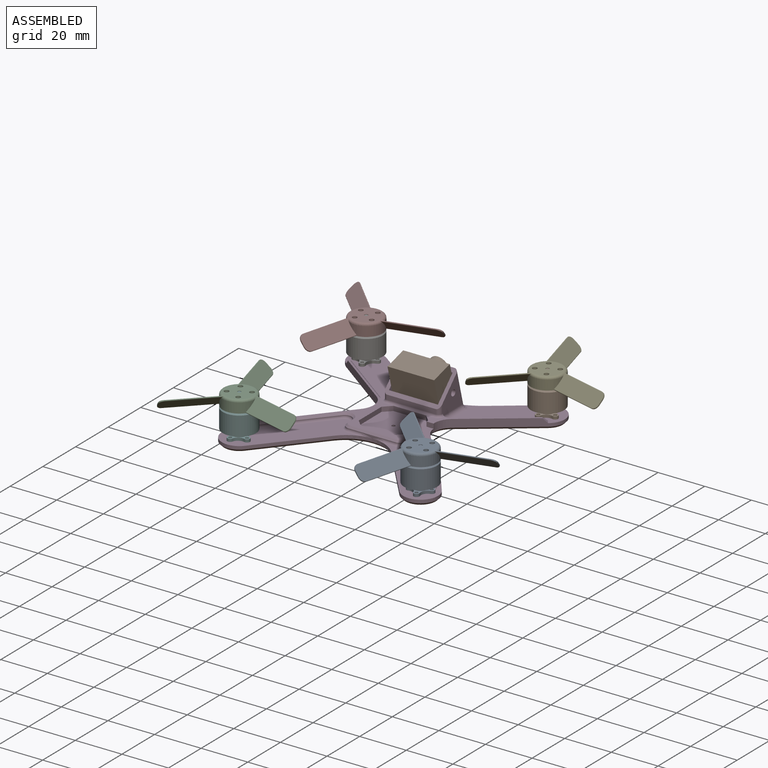
[diagram: assembled view]
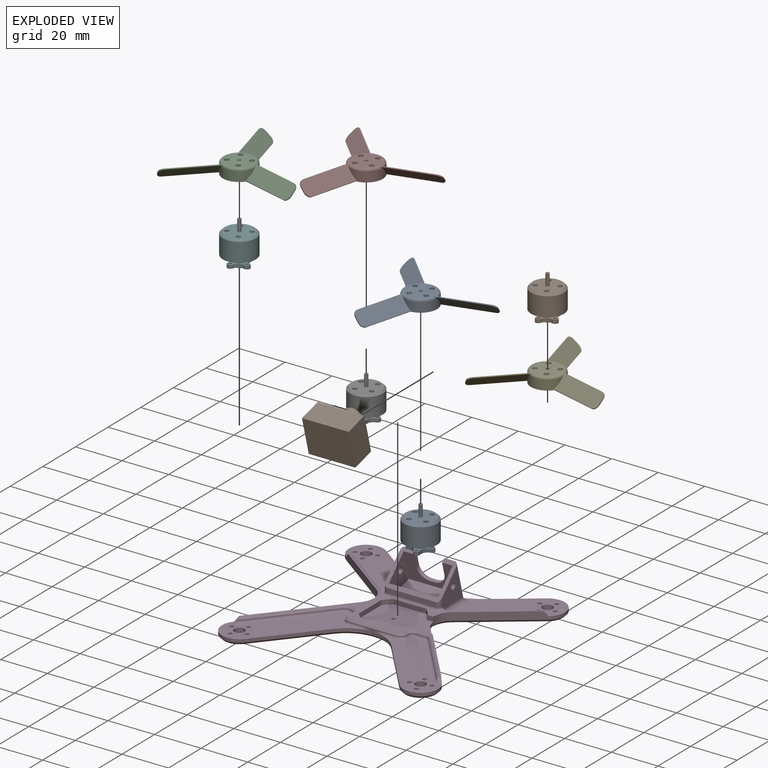
[diagram: exploded view]
GUIDED TOUR — MATED ASSEMBLY (Onshape document 897010bb83bc27f06547f538, AutoMate assembly 897010bb83bc27f06547f538_bd5ba9d6e9a11d0b9ae780dc_fcbd0d82ef825e750d51f35d_default)

This assembly has 10 components, labeled P0..P9 below (a component is one placed occurrence of a part; the same part can appear more than once), held together by 20 mates. A mate is a constraint between two components; its type names the relative motion it leaves free:
  CYLINDRICAL — leaves both rotation about and translation along the listed axis free,
  PLANAR — leaves sliding in the plane through the listed point (normal = the listed direction) and rotation about that normal free.
Axis/direction vectors are unit vectors and 'through' points are millimeter coordinates, both in the assembly's world frame.

MATES
  1. PLANAR "Planar 8": P2 <-> P5, direction (0.000, 0.000, -1.000) through (-38.89, -41.06, 14.83) mm
  2. CYLINDRICAL "Cylindrical 7": P5 <-> P3, axis (0.000, 0.000, -1.000) through (-39.98, -45.11, 2.08) mm
  3. PLANAR "Planar 6": P4 <-> P1, direction (0.000, 0.000, -1.000) through (38.89, 36.73, 14.83) mm
  4. CYLINDRICAL "Cylindrical 1": P6 <-> P3, axis (0.000, 0.000, -1.000) through (-38.89, 36.73, 2.08) mm
  5. PLANAR "Planar 11": P9 <-> P3, direction (1.000, 0.000, 0.000) through (10.00, 15.37, 12.16) mm
  6. PLANAR "Planar 7": P6 <-> P7, direction (0.000, 0.000, 1.000) through (-38.89, 36.73, 14.83) mm
  7. CYLINDRICAL "Cylindrical 4": P1 <-> P3, axis (0.000, 0.000, -1.000) through (38.89, 36.73, 1.78) mm
  8. CYLINDRICAL "Cylindrical 16": P2 <-> P5, axis (0.000, 0.000, 1.000) through (-38.89, -41.06, 20.03) mm
  9. CYLINDRICAL "Cylindrical 9": P8 <-> P0, axis (0.000, 0.000, 1.000) through (38.89, -41.06, 20.03) mm
  10. CYLINDRICAL "Cylindrical 2": P6 <-> P3, axis (0.000, 0.000, -1.000) through (-42.95, 35.64, 2.08) mm
  11. CYLINDRICAL "Cylindrical 5": P0 <-> P3, axis (0.000, 0.000, -1.000) through (42.95, -39.97, 2.08) mm
  12. CYLINDRICAL "Cylindrical 10": P8 <-> P0, axis (0.000, 0.000, 1.000) through (41.14, -37.16, 20.03) mm
  13. CYLINDRICAL "Cylindrical 14": P7 <-> P6, axis (0.000, 0.000, -1.000) through (-42.79, 38.98, 14.83) mm
  14. CYLINDRICAL "Cylindrical 6": P0 <-> P3, axis (0.000, 0.000, -1.000) through (38.89, -41.06, 2.08) mm
  15. PLANAR "Planar 9": P9 <-> P3, direction (0.000, 0.966, 0.259) through (0.00, 20.20, 13.46) mm
  16. PLANAR "Planar 5": P8 <-> P0, direction (0.000, 0.000, -1.000) through (38.89, -41.06, 14.83) mm
  17. CYLINDRICAL "Cylindrical 13": P7 <-> P6, axis (0.000, 0.000, -1.000) through (-38.89, 36.73, 14.83) mm
  18. CYLINDRICAL "Cylindrical 11": P4 <-> P1, axis (0.000, 0.000, 1.000) through (38.89, 36.73, 20.03) mm
  19. CYLINDRICAL "Cylindrical 3": P1 <-> P3, axis (0.000, 0.000, -1.000) through (37.80, 32.67, 2.08) mm
  20. PLANAR "Planar 10": P9 <-> P3, direction (0.000, 0.259, -0.966) through (0.00, 17.45, 4.43) mm

ASSEMBLY ORDER
  1. P4 — the base component [order verified]
  2. P1 [order verified]
  3. P2 [order verified]
  4. P5 [order verified]
  5. P7 [order verified]
  6. P6 [order verified]
  7. P8 [order verified]
  8. P0 [order verified]
  9. P3 [order verified]
  10. P9 [order verified]
(P3 verified with a relaxed clearance tolerance: the source model stores slight part interference there.)
Order-tag legend:
  [order verified] — this step's position reverses a verified removal order: the component was checked to insert without passing through the ones already placed.

Of the 10 components, 5 carry the full construction recipe — the FeatureScript program that regenerates the part's solid from scratch; the rest are supplied as boundary geometry only.
Each toured component is shown spotlighted twice — in the assembled view, then in the exploded view, where a leader line traces a displaced component back to its assembled socket (saturated green if recipe-attached, orange if geometry-only; every other component desaturated gray) — followed by its recipe or geometry summary and the mates that hold it.
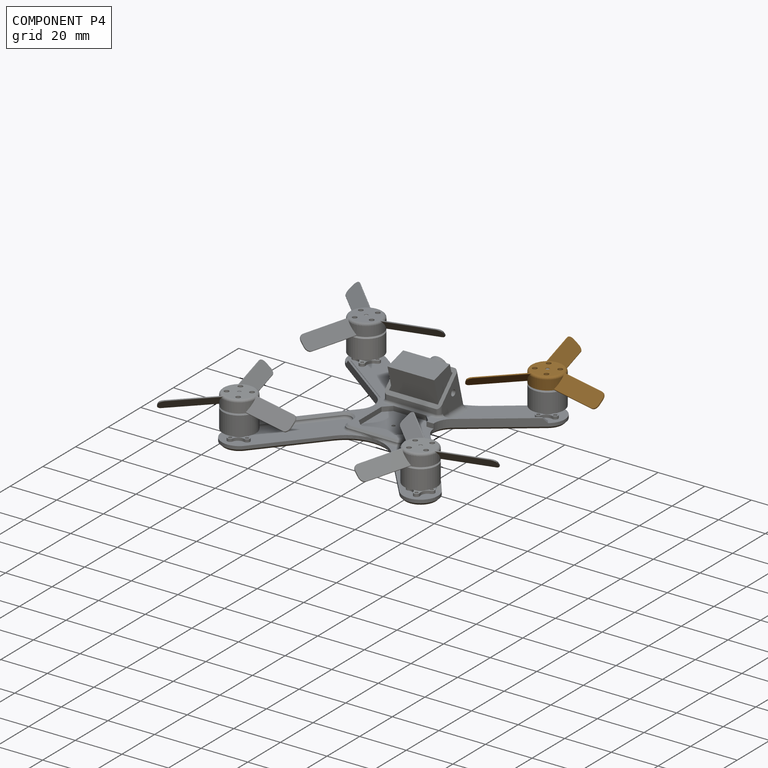
[diagram: component P4 — assembled]
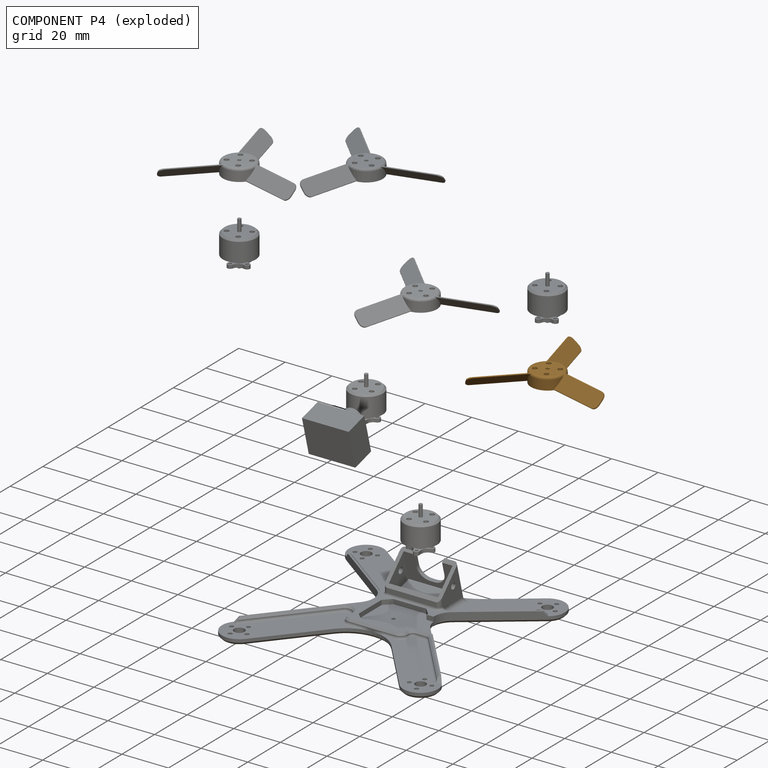
[diagram: component P4 — exploded]
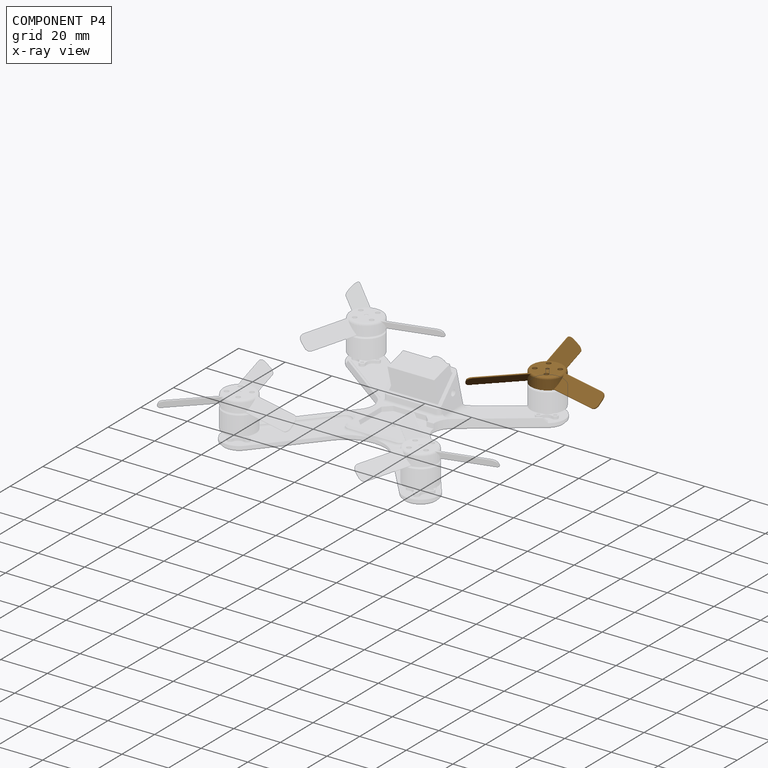
[diagram: component P4 — x-ray view]
COMPONENT P4 — geometry summary (no construction recipe available for this part):
  bounding box: 52.0 x 45.5 x 5.5 mm
  B-rep topology: 1 solid, 35 faces, 198 edges
  volume: 970 mm^3 (8% of its bounding box)
  symmetry: 2-fold rotationally symmetric about the x axis
Held by: PLANAR mate "Planar 6" to P1; CYLINDRICAL mate "Cylindrical 11" to P1.
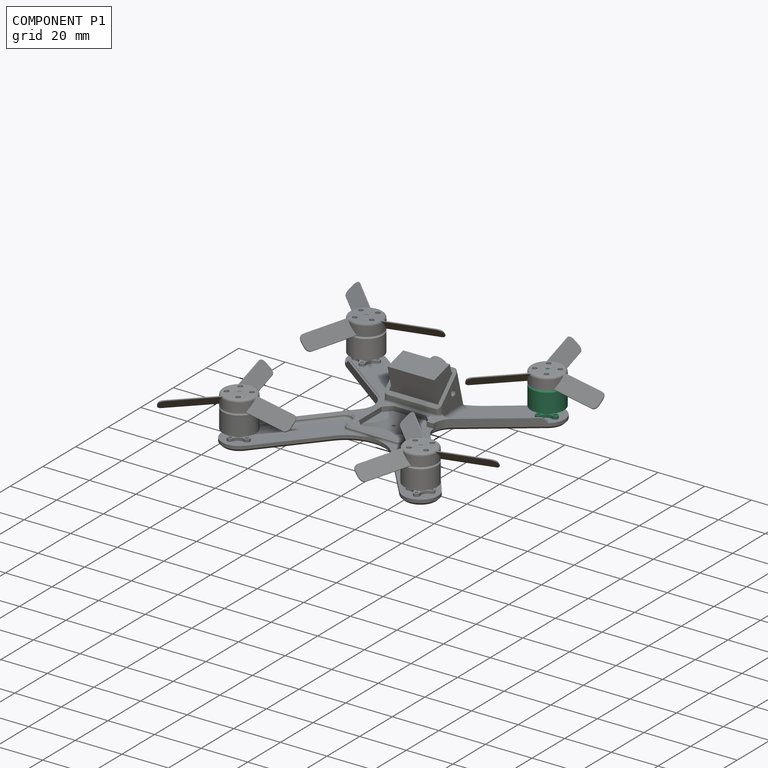
[diagram: component P1 — assembled]
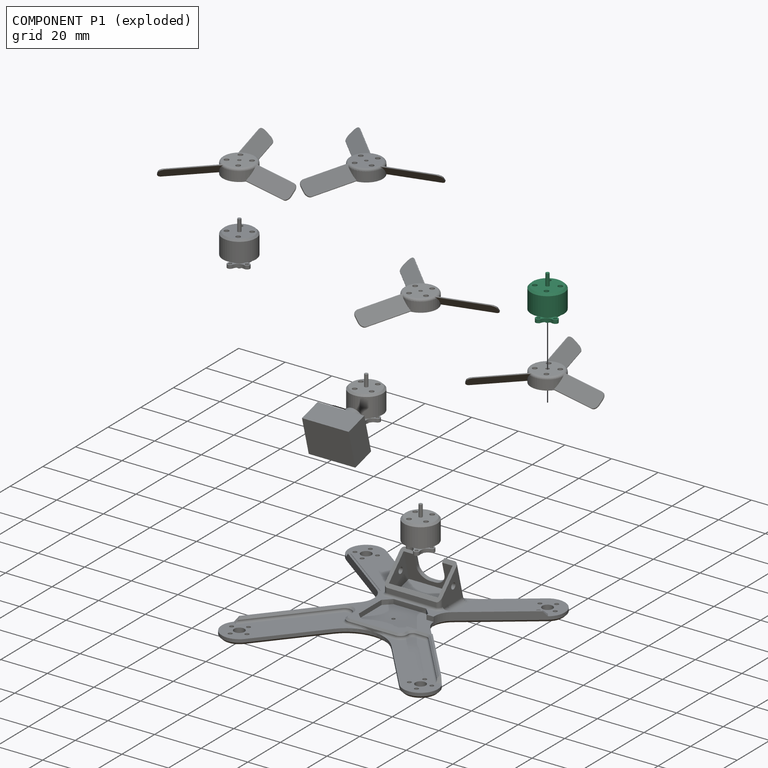
[diagram: component P1 — exploded]
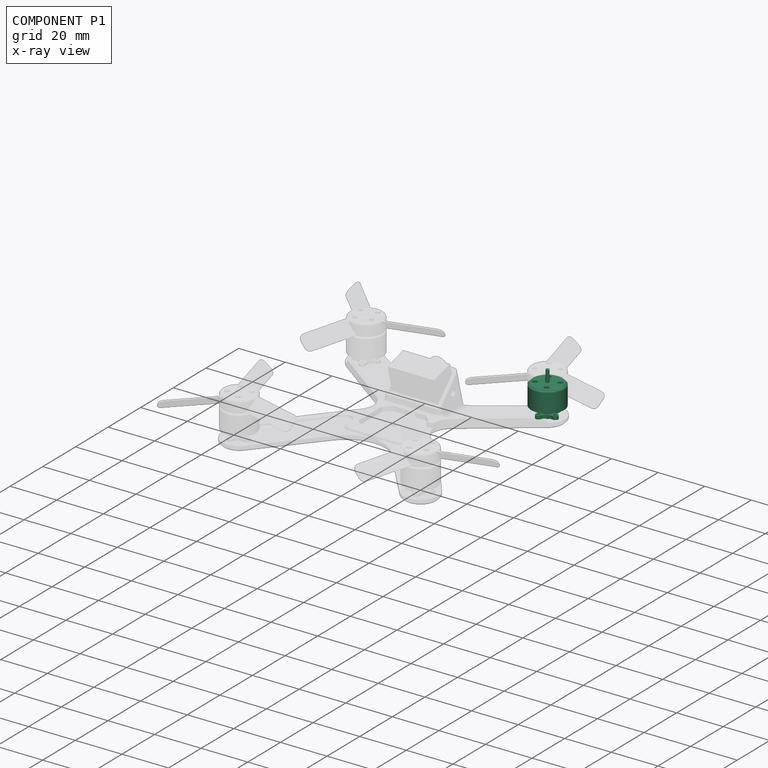
[diagram: component P1 — x-ray view]
COMPONENT P1 — same part as P0 (CADFS 00766726); its construction recipe is shown at P0.
Held by: PLANAR mate "Planar 6" to P4; CYLINDRICAL mate "Cylindrical 4" to P3; CYLINDRICAL mate "Cylindrical 11" to P4; CYLINDRICAL mate "Cylindrical 3" to P3.
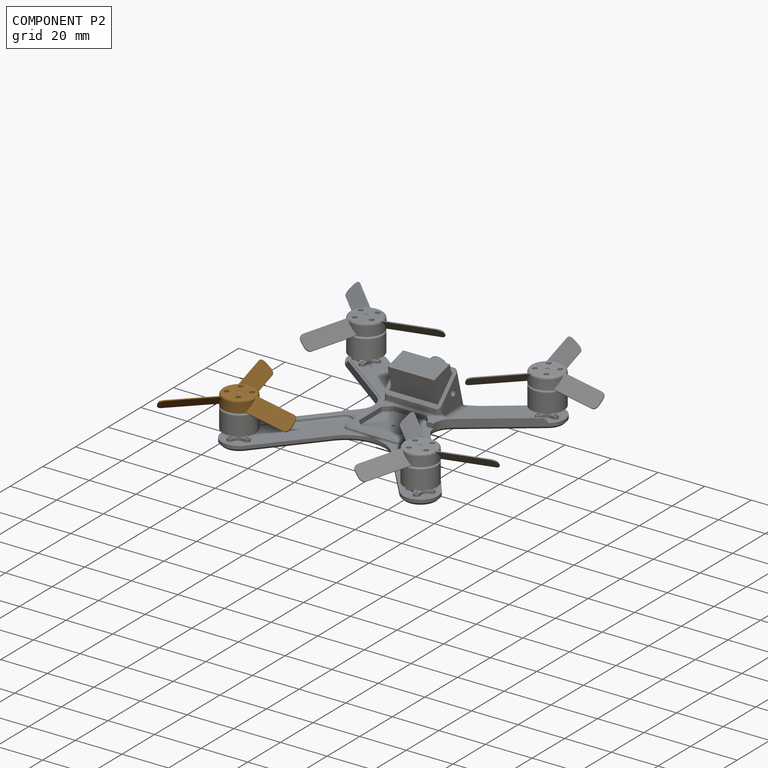
[diagram: component P2 — assembled]
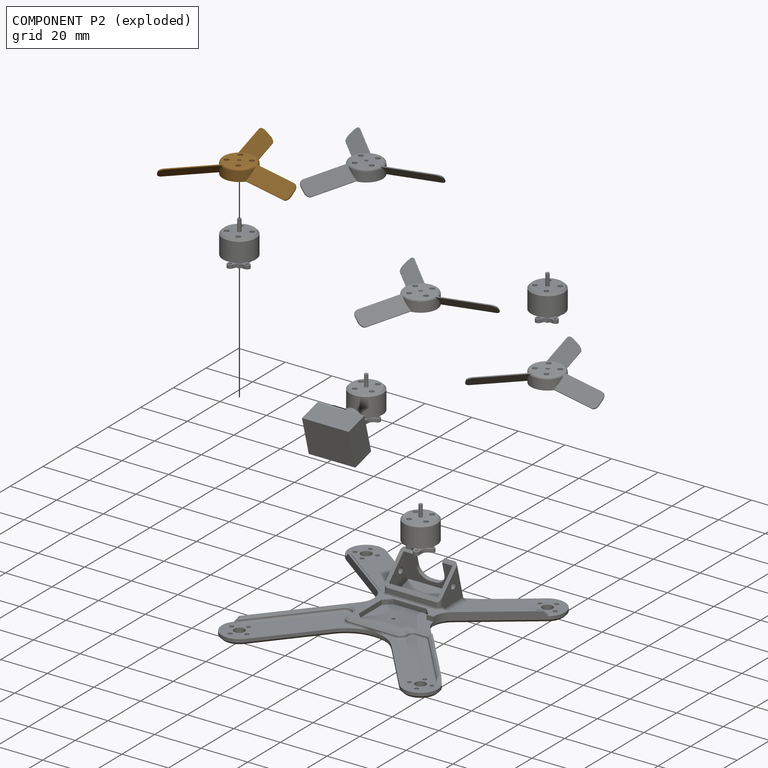
[diagram: component P2 — exploded]
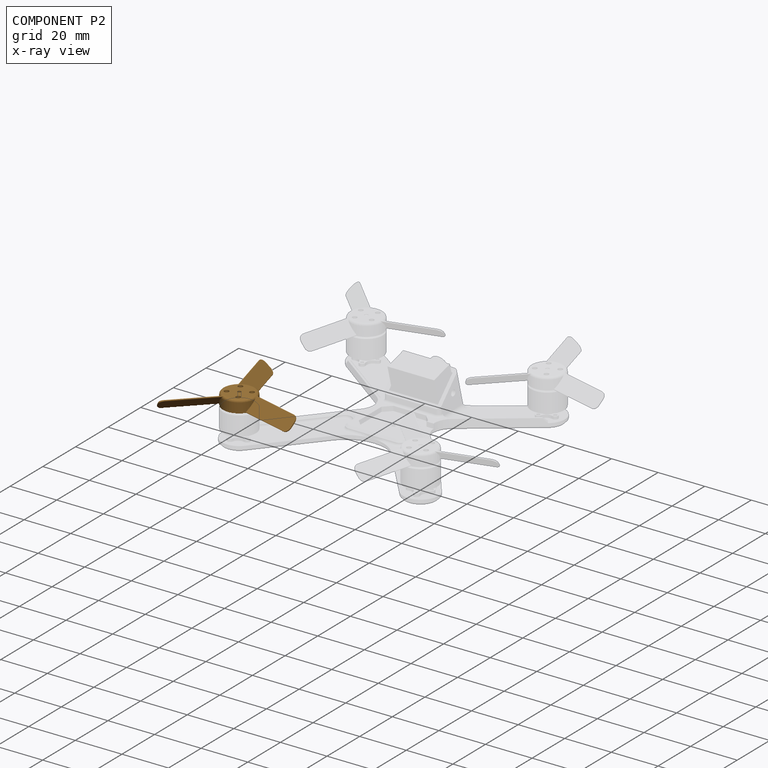
[diagram: component P2 — x-ray view]
COMPONENT P2 — geometry summary (no construction recipe available for this part):
  bounding box: 52.0 x 45.5 x 5.5 mm
  B-rep topology: 1 solid, 35 faces, 198 edges
  volume: 970 mm^3 (8% of its bounding box)
  symmetry: 2-fold rotationally symmetric about the x axis
Held by: PLANAR mate "Planar 8" to P5; CYLINDRICAL mate "Cylindrical 16" to P5.
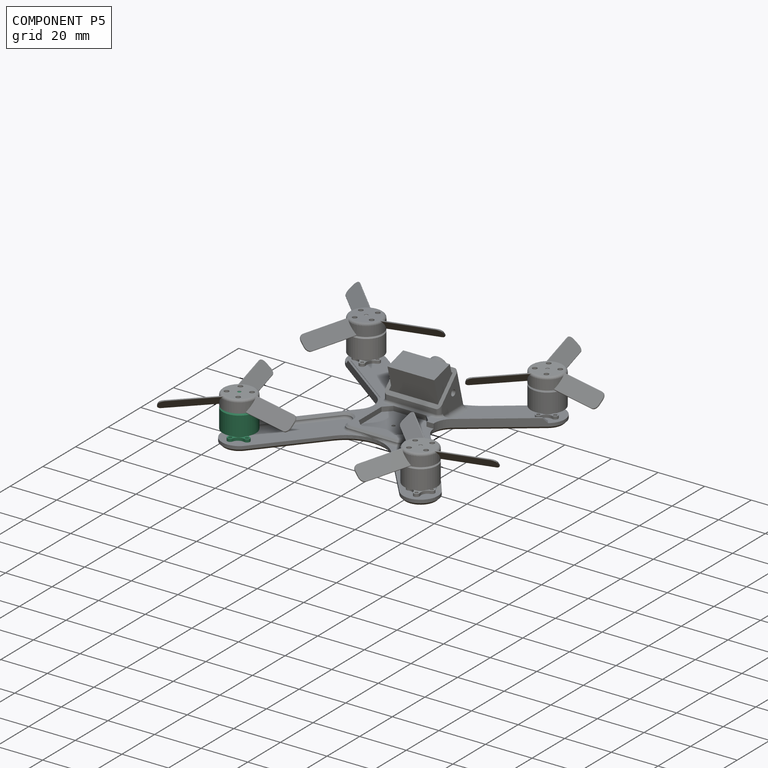
[diagram: component P5 — assembled]
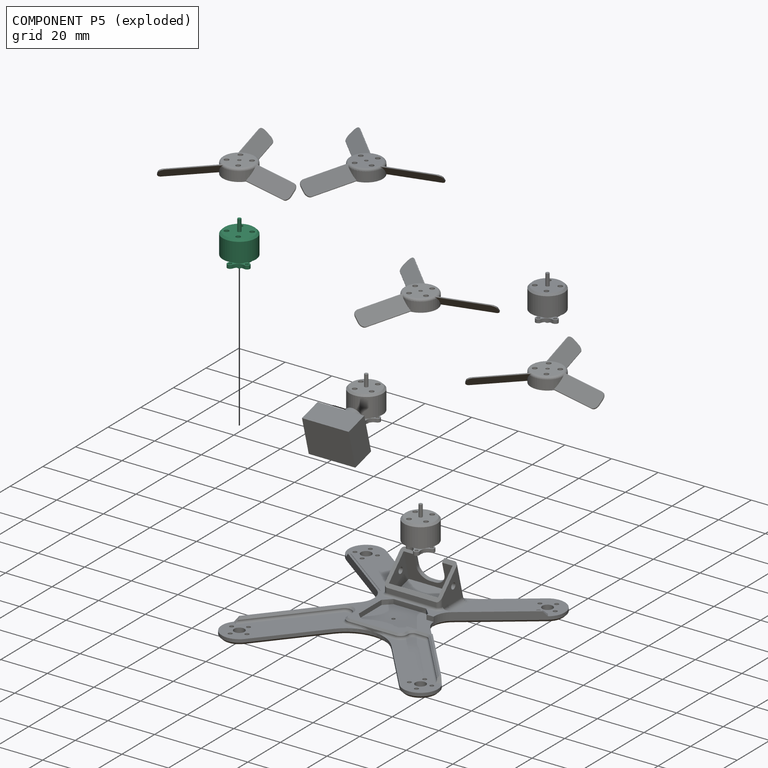
[diagram: component P5 — exploded]
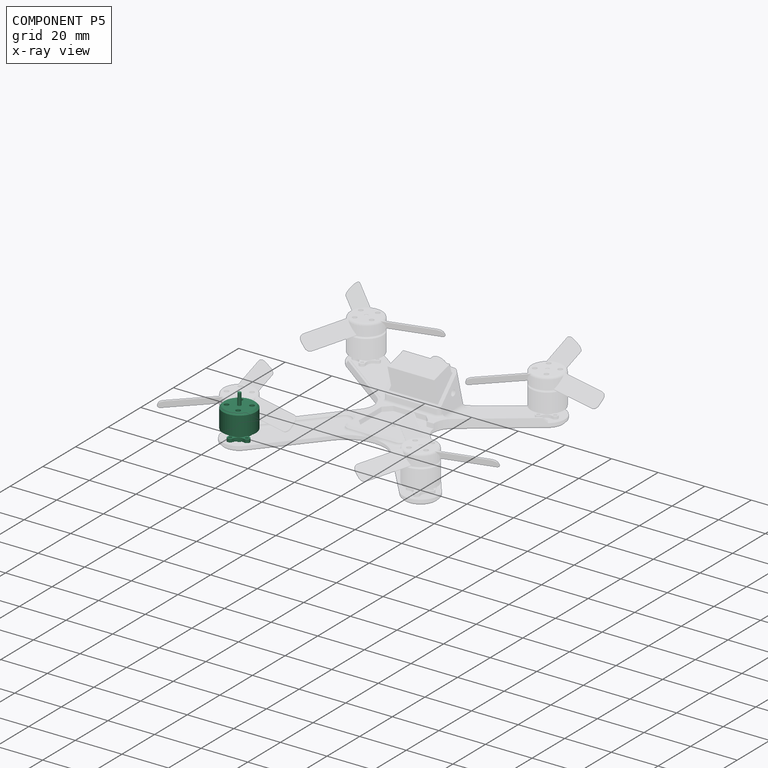
[diagram: component P5 — x-ray view]
COMPONENT P5 — same part as P0 (CADFS 00766726); its construction recipe is shown at P0.
Held by: PLANAR mate "Planar 8" to P2; CYLINDRICAL mate "Cylindrical 7" to P3; CYLINDRICAL mate "Cylindrical 16" to P2.
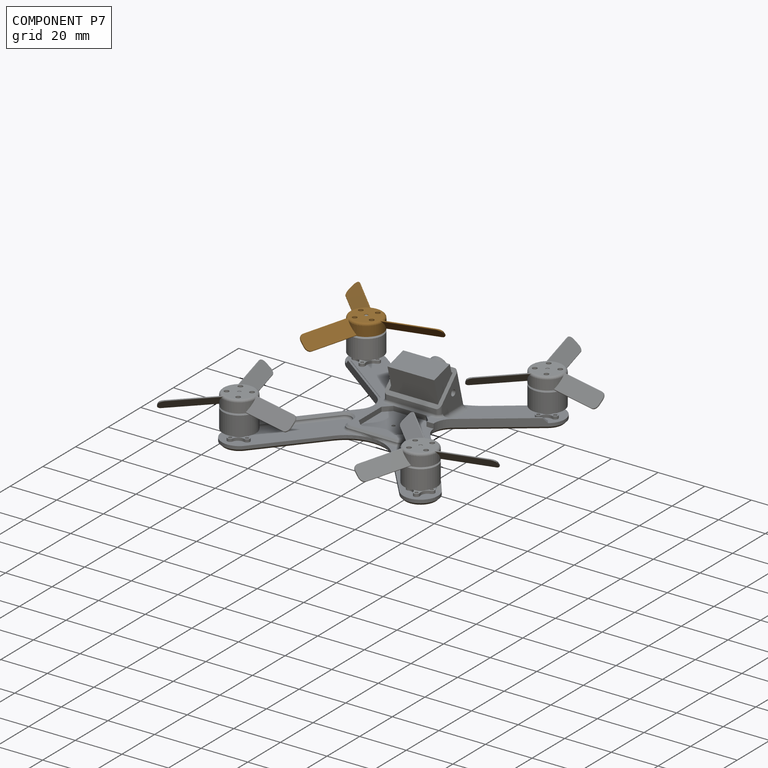
[diagram: component P7 — assembled]
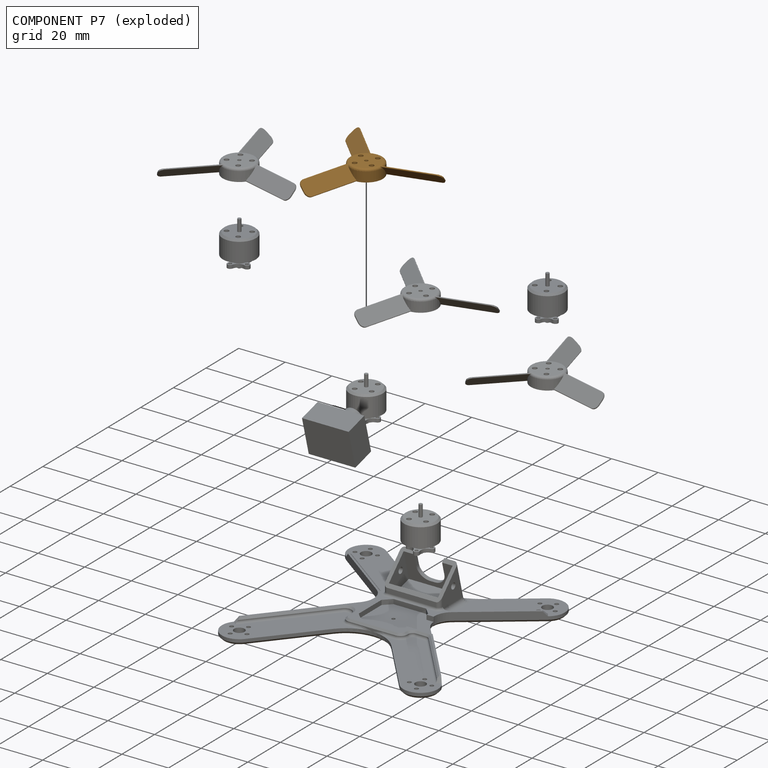
[diagram: component P7 — exploded]
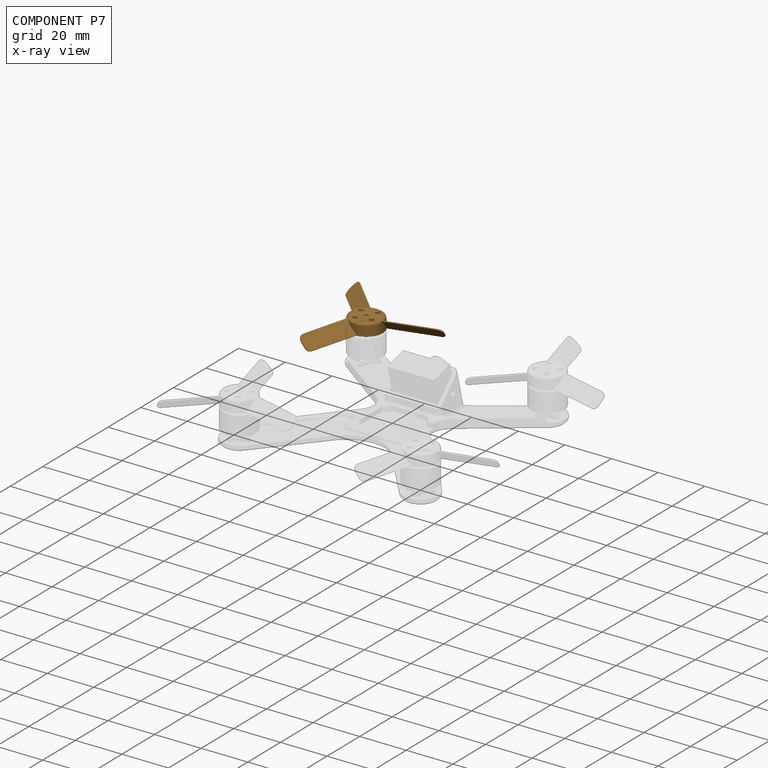
[diagram: component P7 — x-ray view]
COMPONENT P7 — geometry summary (no construction recipe available for this part):
  bounding box: 52.0 x 45.5 x 5.5 mm
  B-rep topology: 1 solid, 35 faces, 198 edges
  volume: 970 mm^3 (8% of its bounding box)
Held by: PLANAR mate "Planar 7" to P6; CYLINDRICAL mate "Cylindrical 14" to P6; CYLINDRICAL mate "Cylindrical 13" to P6.
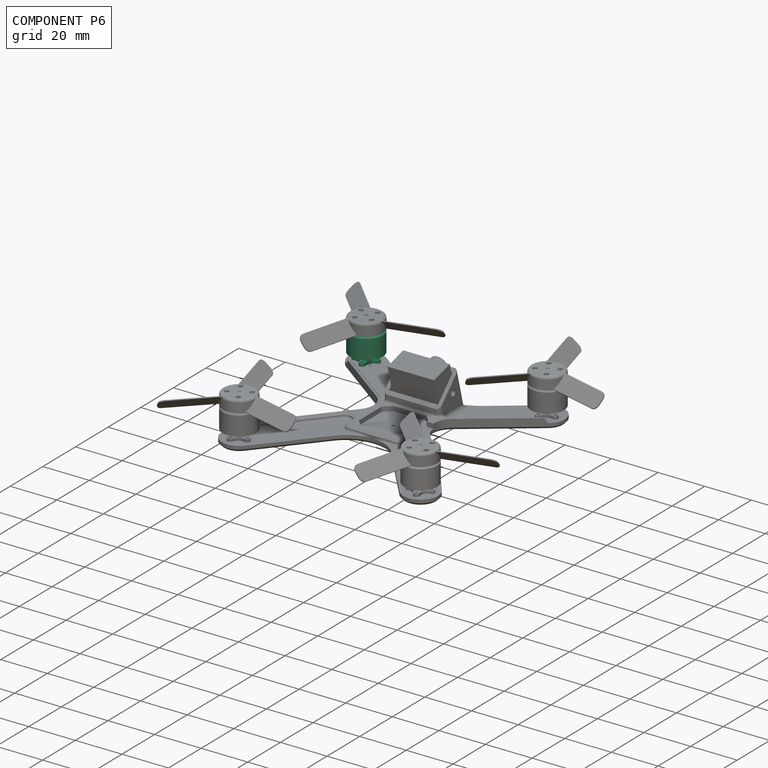
[diagram: component P6 — assembled]
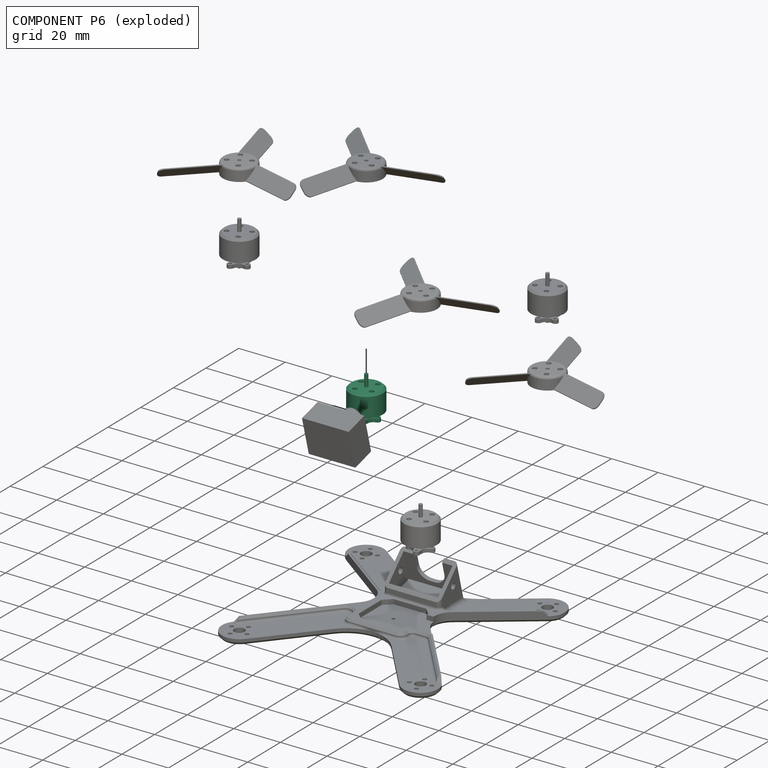
[diagram: component P6 — exploded]
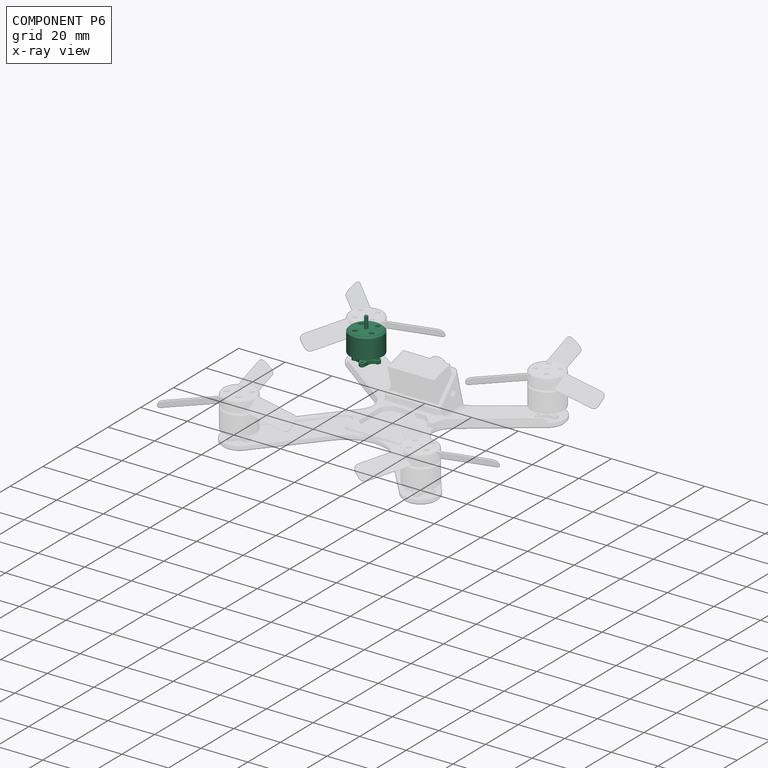
[diagram: component P6 — x-ray view]
COMPONENT P6 — same part as P0 (CADFS 00766726); its construction recipe is shown at P0.
Held by: CYLINDRICAL mate "Cylindrical 1" to P3; PLANAR mate "Planar 7" to P7; CYLINDRICAL mate "Cylindrical 2" to P3; CYLINDRICAL mate "Cylindrical 14" to P7; CYLINDRICAL mate "Cylindrical 13" to P7.
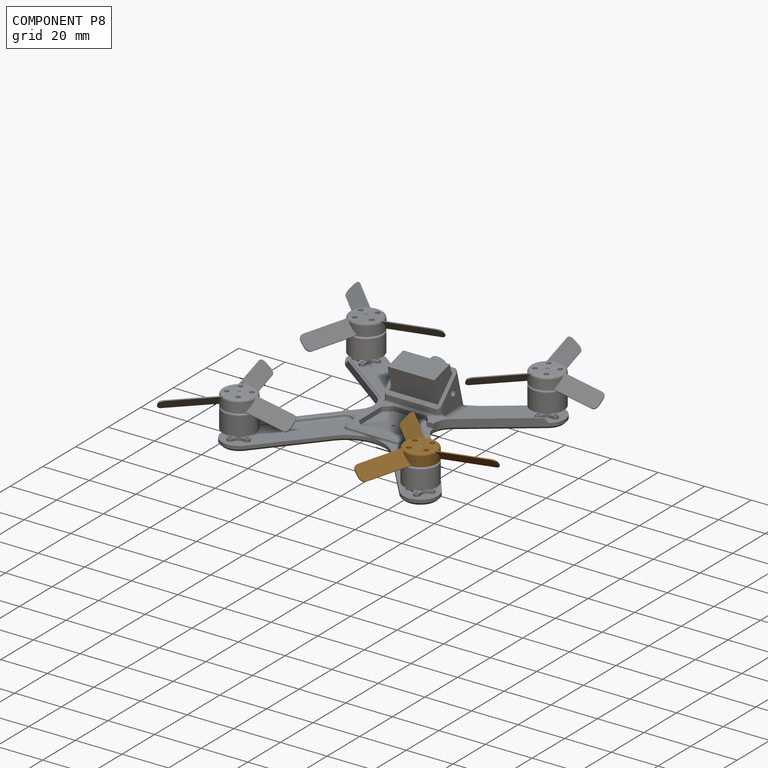
[diagram: component P8 — assembled]
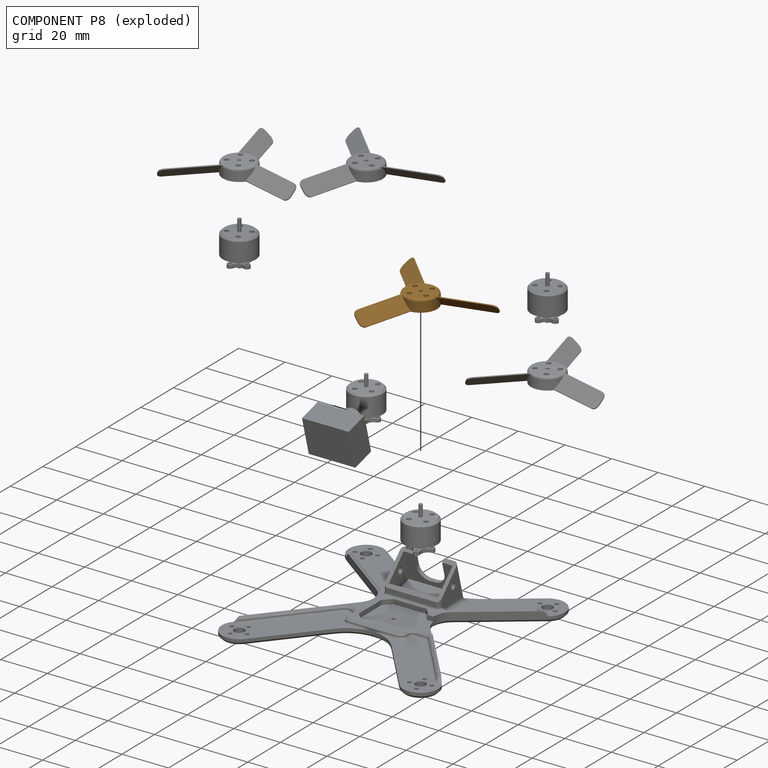
[diagram: component P8 — exploded]
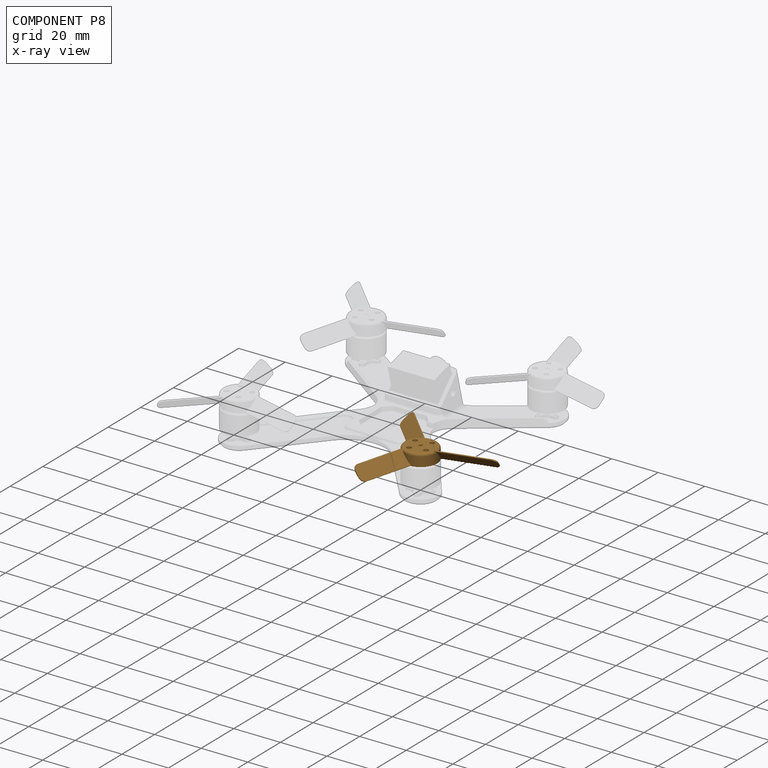
[diagram: component P8 — x-ray view]
COMPONENT P8 — geometry summary (no construction recipe available for this part):
  bounding box: 52.0 x 45.5 x 5.5 mm
  B-rep topology: 1 solid, 35 faces, 198 edges
  volume: 970 mm^3 (8% of its bounding box)
Held by: CYLINDRICAL mate "Cylindrical 9" to P0; CYLINDRICAL mate "Cylindrical 10" to P0; PLANAR mate "Planar 5" to P0.
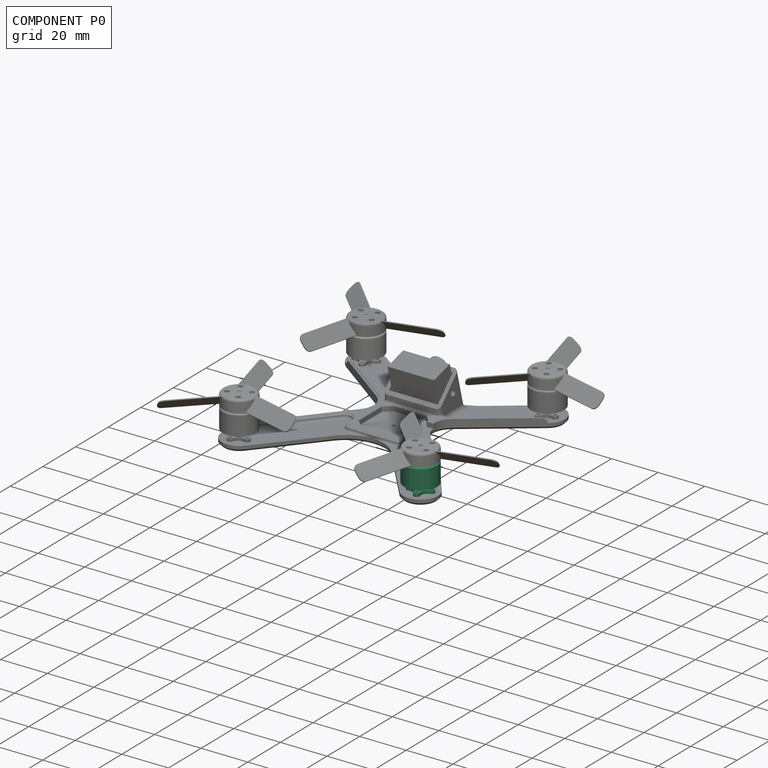
[diagram: component P0 — assembled]
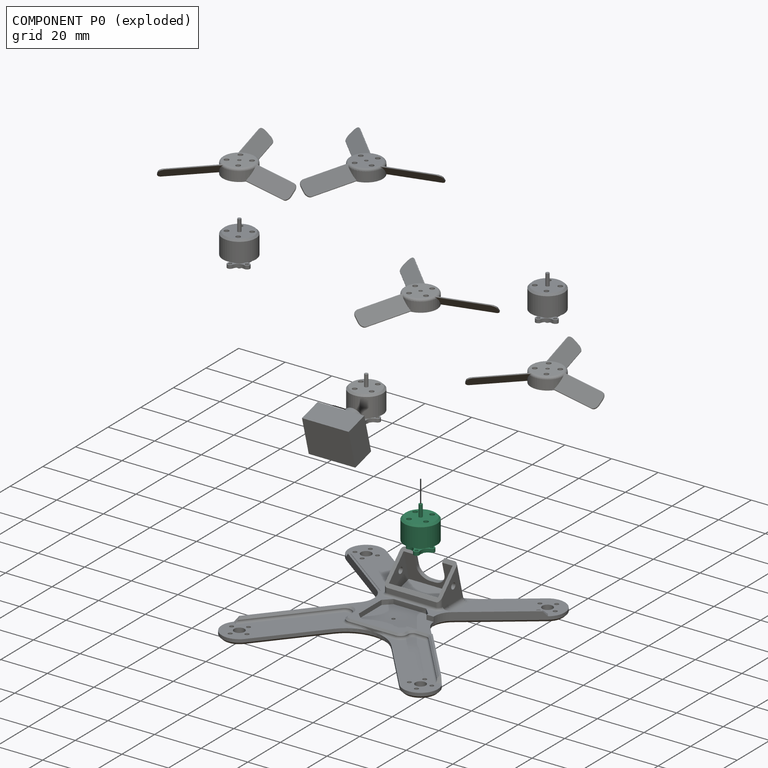
[diagram: component P0 — exploded]
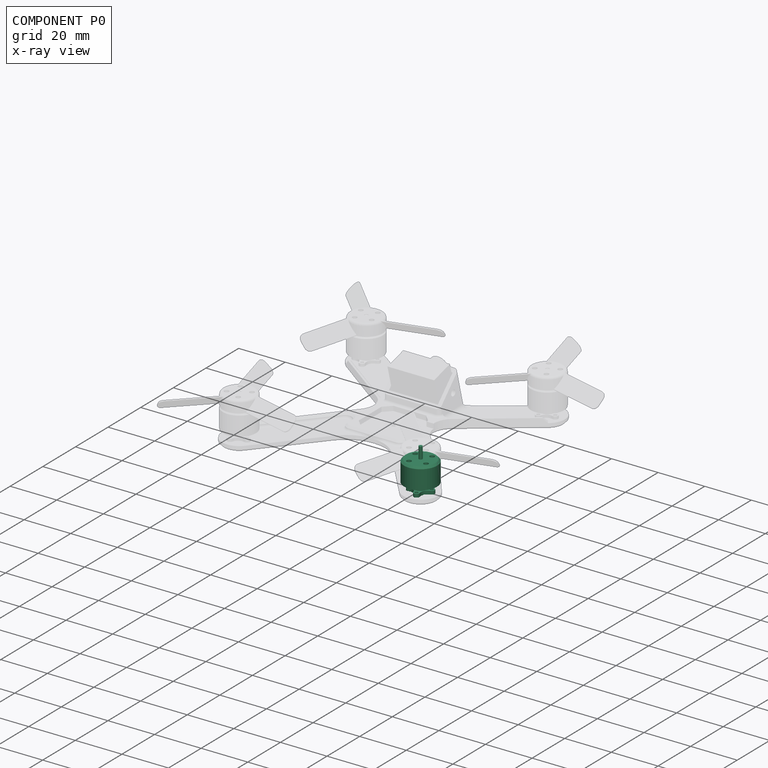
[diagram: component P0 — x-ray view]
COMPONENT P0 — recipe-attached (CADFS 00766726, mesh-verified: the recipe's output STEP matches this component's geometry to below the mesh-comparison resolution (tessellation chordal tolerance ~0.0415 mm)).
Held by: CYLINDRICAL mate "Cylindrical 9" to P8; CYLINDRICAL mate "Cylindrical 5" to P3; CYLINDRICAL mate "Cylindrical 10" to P8; CYLINDRICAL mate "Cylindrical 6" to P3; PLANAR mate "Planar 5" to P8.
Construction recipe (FeatureScript — the CAD program that rebuilds this solid; sketch coordinates are in the units given by the * unit suffixes, e.g. mm):

FeatureScript 1511;
import(path : "onshape/std/geometry.fs", version : "1511.0");
import(path : "onshape/std/common.fs", version : "1511.0");
const mm = millimeter;
const VERTEX = EntityType.VERTEX;
const EDGE = EntityType.EDGE;
const FACE = EntityType.FACE;
const BODY = EntityType.BODY;
function v(x, y){return vector(x, y);}
function OD(order){return orderDisambiguation(order);}
function OSD(set){return originalSetDisambiguation(set);}
function TD(topology){return topologyDisambiguation(topology);}
function TDD(query){return trueDependencyDisambiguation(query);}
function sQuery(a, b, c) {return sketchEntityQuery(a, b, c);}

annotation { "Feature Type Name" : "Feature", "Feature Type Description" : "" }
export const myFeature = defineFeature(function(context is Context, id is Id, definition is map)
    precondition{}
    {
        {
            var Q0;
            Q0=qCreatedBy(makeId("Top.planeOp"),FACE);
            var sketch = newSketch(context, id + "F0", { "sketchPlane" : qUnion([Q0])});
            skCircle(sketch, "E0", {"center": v(0, 0) * mm, "radius": 7.1 * mm});
            skSolve(sketch);
        }
        {
            var Q0;
            Q0 = qSketchRegion(id + "F0", true);
            extrude(context, id + "F1", {"entities" : qUnion([Q0]), "depth" : 9 * mm, "offsetDistance" : 25 * mm});
        }
        {
            var Q0;
            Q0=makeQuery(id+"F1.opExtrude","CAP_FACE",FACE,{"disambiguationData":[OSD([sQuery(id+"F0.wireOp",EDGE,"E0")])],"isStart":false});
            var sketch = newSketch(context, id + "F2", { "sketchPlane" : qUnion([Q0])});
            skCircle(sketch, "E1", {"center": v(0, 0) * mm, "radius": 0.75 * mm});
            skSolve(sketch);
        }
        {
            var Q0;
            Q0 = qSketchRegion(id + "F2", true);
            extrude(context, id + "F3", {"entities" : qUnion([Q0]), "operationType" : NewBodyOperationType.ADD, "depth" : 5 * mm, "offsetDistance" : 25 * mm});
        }
        {
            var Q0;
            Q0=makeQuery(id+"F1.opExtrude","CAP_FACE",FACE,{"disambiguationData":[OSD([sQuery(id+"F0.wireOp",EDGE,"E0")])],"isStart":false});
            var sketch = newSketch(context, id + "F4", { "sketchPlane" : qUnion([Q0])});
            skLineSegment(sketch, "E2.bottom", {"start": v(3.18, 3.18) * mm, "end": v(-3.18, 3.18) * mm, "construction": true});
            skLineSegment(sketch, "E2.top", {"start": v(3.18, -3.18) * mm, "end": v(-3.18, -3.18) * mm, "construction": true});
            skLineSegment(sketch, "E2.left", {"start": v(3.18, 3.18) * mm, "end": v(3.18, -3.18) * mm, "construction": true});
            skLineSegment(sketch, "E2.right", {"start": v(-3.18, 3.18) * mm, "end": v(-3.18, -3.18) * mm, "construction": true});
            skPoint(sketch, "E2.middle", {"position": v(0, 0) * mm});
            skCircle(sketch, "E3", {"center": v(3.18, 3.18) * mm, "radius": 1 * mm});
            skCircle(sketch, "E4", {"center": v(-3.18, 3.18) * mm, "radius": 1 * mm});
            skCircle(sketch, "E5", {"center": v(-3.18, -3.18) * mm, "radius": 1 * mm});
            skCircle(sketch, "E6", {"center": v(3.18, -3.18) * mm, "radius": 1 * mm});
            skSolve(sketch);
        }
        {
            var Q0;
            Q0 = qSketchRegion(id + "F4", true);
            extrude(context, id + "F5", {"entities" : qUnion([Q0]), "operationType" : NewBodyOperationType.REMOVE, "oppositeDirection" : true, "depth" : 3 * mm, "offsetDistance" : 25 * mm});
        }
        {
            var Q0;
            Q0=makeQuery(id+"F1.opExtrude","CAP_FACE",FACE,{"disambiguationData":[OSD([sQuery(id+"F0.wireOp",EDGE,"E0")])],"isStart":true});
            var sketch = newSketch(context, id + "F6", { "sketchPlane" : qUnion([Q0])});
            skCircle(sketch, "E7", {"center": v(0, 0) * mm, "radius": 2.75 * mm});
            skSolve(sketch);
        }
        {
            var Q0;
            Q0 = qSketchRegion(id + "F6", true);
            var Q1;
            Q1=makeQuery(id+"F1.opExtrude","CAP_FACE",FACE,{"disambiguationData":[OSD([sQuery(id+"F0.wireOp",EDGE,"E0")])],"isStart":false});
            extrude(context, id + "F7", {"entities" : qUnion([Q0]), "operationType" : NewBodyOperationType.ADD, "depth" : 3 * mm, "endBoundEntityFace" : qUnion([Q1]), "hasOffset" : true, "offsetDistance" : 12 * mm});
        }
        {
            var Q0;
            Q0=makeQuery(id+"F7.opExtrude","CAP_FACE",FACE,{"disambiguationData":[OSD([sQuery(id+"F6.wireOp",EDGE,"E7")])],"isStart":false});
            var sketch = newSketch(context, id + "F8", { "sketchPlane" : qUnion([Q0])});
            skLineSegment(sketch, "E8", {"start": v(0, 0) * mm, "end": v(4.2, 0) * mm, "construction": true});
            skCircle(sketch, "E9", {"center": v(4.2, 0) * mm, "radius": 0.7 * mm});
            skArc(sketch, "E10", {"start": v(4.19, 1.25) * mm, "mid": v(5.45, 0) * mm, "end": v(4.19, -1.25) * mm});
            skLineSegment(sketch, "E11", {"start": v(0, 0) * mm, "end": v(0, 4.2) * mm, "construction": true});
            skLineSegment(sketch, "E12", {"start": v(0, 4.2) * mm, "end": v(4.2, 0) * mm, "construction": true});
            skArc(sketch, "E13", {"start": v(4.19, 1.25) * mm, "mid": v(3.06, 1.46) * mm, "end": v(2.1, 2.1) * mm});
            skLineSegment(sketch, "E14", {"start": v(0, 1.25) * mm, "end": v(4.19, 1.25) * mm, "construction": true});
            skArc(sketch, "E15.MirrorCS", {"start": v(4.19, -1.25) * mm, "mid": v(3.06, -1.46) * mm, "end": v(2.1, -2.1) * mm});
            skArc(sketch, "E16.1.0", {"start": v(1.25, 4.19) * mm, "mid": v(1.46, 3.06) * mm, "end": v(2.1, 2.1) * mm});
            skArc(sketch, "E16.1.1", {"start": v(-1.25, 4.19) * mm, "mid": v(0, 5.45) * mm, "end": v(1.25, 4.19) * mm});
            skCircle(sketch, "E16.1.2", {"center": v(0, 4.2) * mm, "radius": 0.7 * mm});
            skArc(sketch, "E16.1.3", {"start": v(-1.25, 4.19) * mm, "mid": v(-1.46, 3.06) * mm, "end": v(-2.1, 2.1) * mm});
            skArc(sketch, "E16.2.0", {"start": v(-4.19, 1.25) * mm, "mid": v(-3.06, 1.46) * mm, "end": v(-2.1, 2.1) * mm});
            skArc(sketch, "E16.2.1", {"start": v(-4.19, -1.25) * mm, "mid": v(-5.45, 0) * mm, "end": v(-4.19, 1.25) * mm});
            skCircle(sketch, "E16.2.2", {"center": v(-4.2, 0) * mm, "radius": 0.7 * mm});
            skArc(sketch, "E16.2.3", {"start": v(-4.19, -1.25) * mm, "mid": v(-3.06, -1.46) * mm, "end": v(-2.1, -2.1) * mm});
            skArc(sketch, "E16.3.0", {"start": v(-1.25, -4.19) * mm, "mid": v(-1.46, -3.06) * mm, "end": v(-2.1, -2.1) * mm});
            skArc(sketch, "E16.3.1", {"start": v(1.25, -4.19) * mm, "mid": v(0, -5.45) * mm, "end": v(-1.25, -4.19) * mm});
            skCircle(sketch, "E16.3.2", {"center": v(0, -4.2) * mm, "radius": 0.7 * mm});
            skArc(sketch, "E16.3.3", {"start": v(1.25, -4.19) * mm, "mid": v(1.46, -3.06) * mm, "end": v(2.1, -2.1) * mm});
            skPoint(sketch, "E16.center", {"position": v(0, 0) * mm});
            skSolve(sketch);
        }
        {
            var Q0;
            Q0 = qSketchRegion(id + "F8", true);
            extrude(context, id + "F9", {"entities" : qUnion([Q0]), "operationType" : NewBodyOperationType.ADD, "endBound" : BoundingType.SYMMETRIC, "oppositeDirection" : true, "depth" : 1.5 * mm, "offsetDistance" : 25 * mm});
        }
        {
            var Q0;
            Q0=makeQuery(id+"F9.opExtrude","CAP_FACE",FACE,{"disambiguationData":[OSD([sQuery(id+"F8.wireOp",EDGE,"E9"),sQuery(id+"F8.wireOp",EDGE,"E10"),sQuery(id+"F8.wireOp",EDGE,"E13"),sQuery(id+"F8.wireOp",EDGE,"E15.MirrorCS"),sQuery(id+"F8.wireOp",EDGE,"E16.1.0"),sQuery(id+"F8.wireOp",EDGE,"E16.1.1"),sQuery(id+"F8.wireOp",EDGE,"E16.1.2"),sQuery(id+"F8.wireOp",EDGE,"E16.1.3"),sQuery(id+"F8.wireOp",EDGE,"E16.2.0"),sQuery(id+"F8.wireOp",EDGE,"E16.2.1"),sQuery(id+"F8.wireOp",EDGE,"E16.2.2"),sQuery(id+"F8.wireOp",EDGE,"E16.2.3"),sQuery(id+"F8.wireOp",EDGE,"E16.3.0"),sQuery(id+"F8.wireOp",EDGE,"E16.3.1"),sQuery(id+"F8.wireOp",EDGE,"E16.3.2"),sQuery(id+"F8.wireOp",EDGE,"E16.3.3")])],"isStart":true});
            var sketch = newSketch(context, id + "F10", { "sketchPlane" : qUnion([Q0])});
            skCircle(sketch, "E17", {"center": v(0, 0) * mm, "radius": 2 * mm});
            skSolve(sketch);
        }
        {
            var Q0;
            Q0 = qSketchRegion(id + "F10", true);
            extrude(context, id + "F11", {"entities" : qUnion([Q0]), "operationType" : NewBodyOperationType.ADD, "depth" : 0.3 * mm, "offsetDistance" : 25 * mm});
        }
        {
            var Q0;
            Q0=makeQuery(id+"F11.opExtrude","CAP_FACE",FACE,{"disambiguationData":[OSD([sQuery(id+"F10.wireOp",EDGE,"E17")])],"isStart":false});
            var sketch = newSketch(context, id + "F12", { "sketchPlane" : qUnion([Q0])});
            skCircle(sketch, "E18", {"center": v(0, 0) * mm, "radius": 0.82 * mm});
            skSolve(sketch);
        }
        {
            var Q0;
            Q0 = qSketchRegion(id + "F12", true);
            extrude(context, id + "F13", {"entities" : qUnion([Q0]), "operationType" : NewBodyOperationType.ADD, "depth" : 1 * mm, "offsetDistance" : 25 * mm});
        }
        {
            var Q0;
            Q0=makeQuery(id+"F1.opExtrude","CAP_EDGE",EDGE,{"disambiguationData":[OSD([sQuery(id+"F0.wireOp",EDGE,"E0")])],"isStart":false});
            chamfer(context, id + "F14", {"entities" : qUnion([Q0]), "width" : 0.8 * mm, "tangentPropagation" : true});
        }
    });
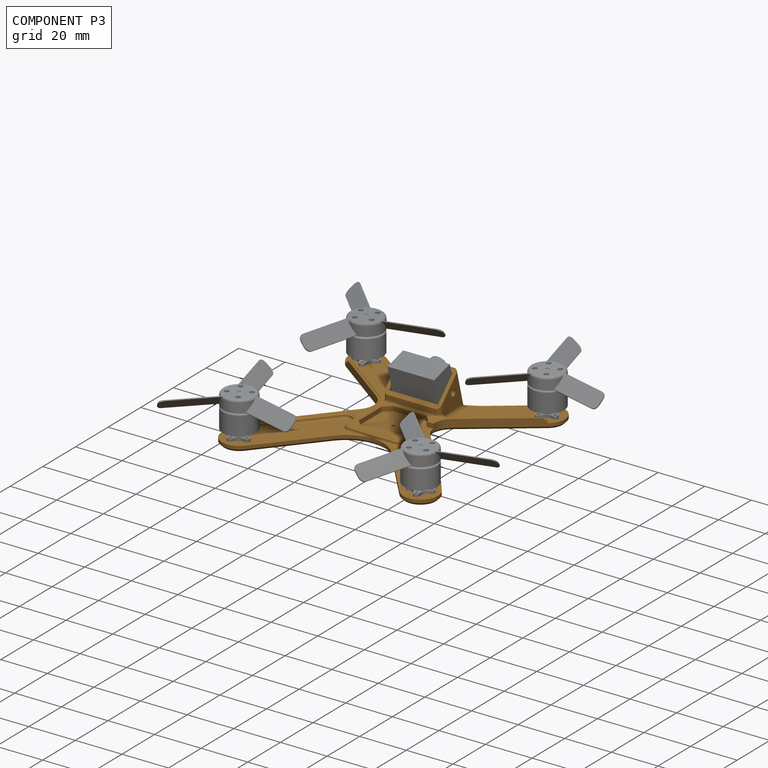
[diagram: component P3 — assembled]
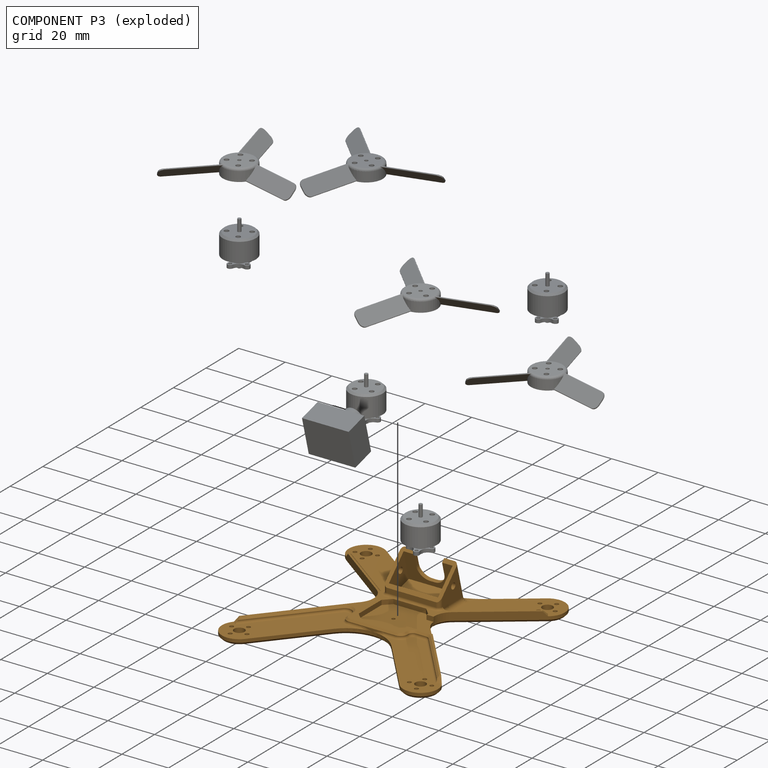
[diagram: component P3 — exploded]
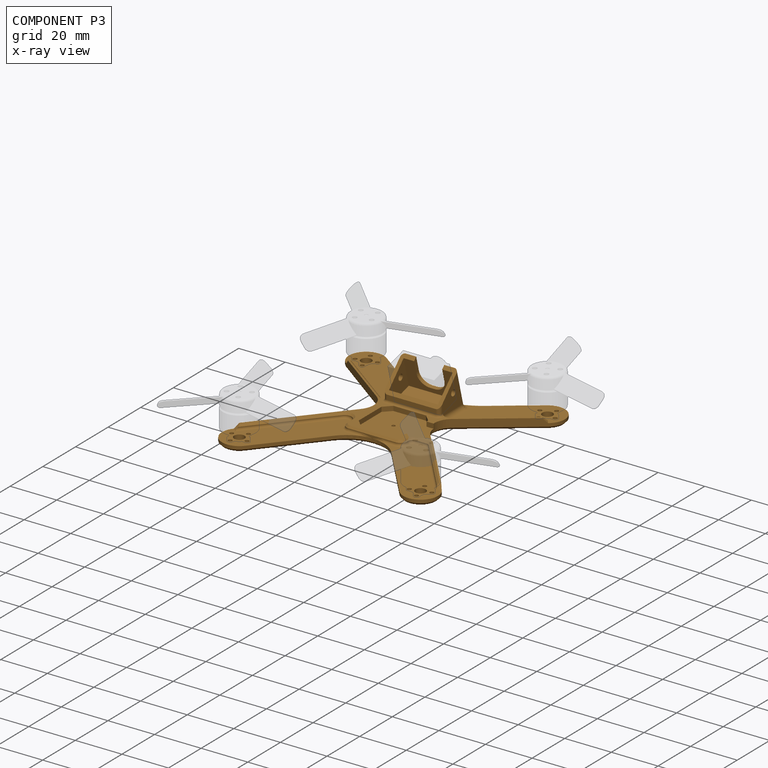
[diagram: component P3 — x-ray view]
COMPONENT P3 — geometry summary (no construction recipe available for this part):
  bounding box: 93.4 x 93.4 x 19.7 mm
  B-rep topology: 1 solid, 154 faces, 802 edges
  volume: 10687 mm^3 (6% of its bounding box)
Held by: CYLINDRICAL mate "Cylindrical 7" to P5; CYLINDRICAL mate "Cylindrical 1" to P6; PLANAR mate "Planar 11" to P9; CYLINDRICAL mate "Cylindrical 4" to P1; CYLINDRICAL mate "Cylindrical 2" to P6; CYLINDRICAL mate "Cylindrical 5" to P0; CYLINDRICAL mate "Cylindrical 6" to P0; PLANAR mate "Planar 9" to P9; CYLINDRICAL mate "Cylindrical 3" to P1; PLANAR mate "Planar 10" to P9.
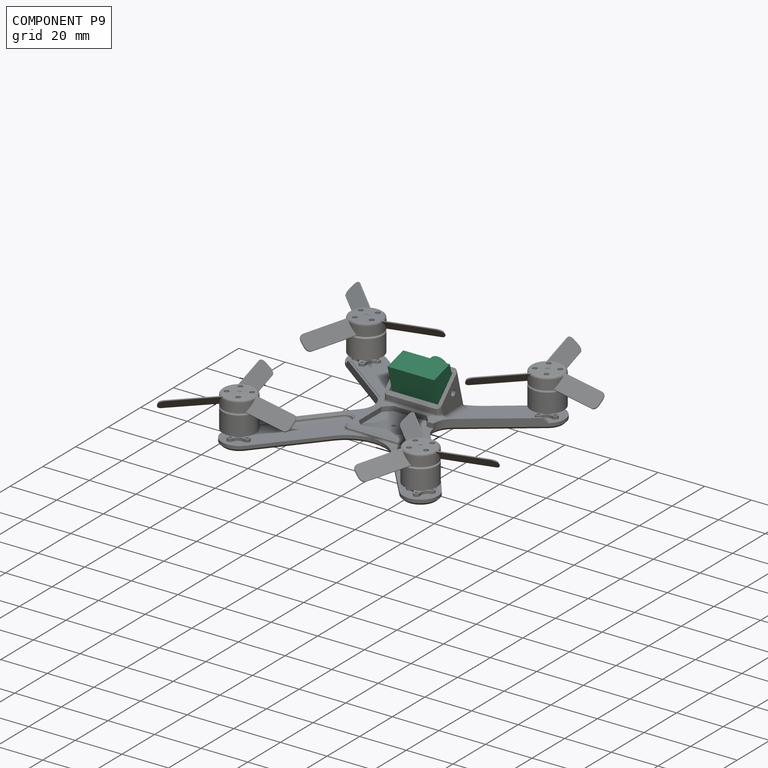
[diagram: component P9 — assembled]
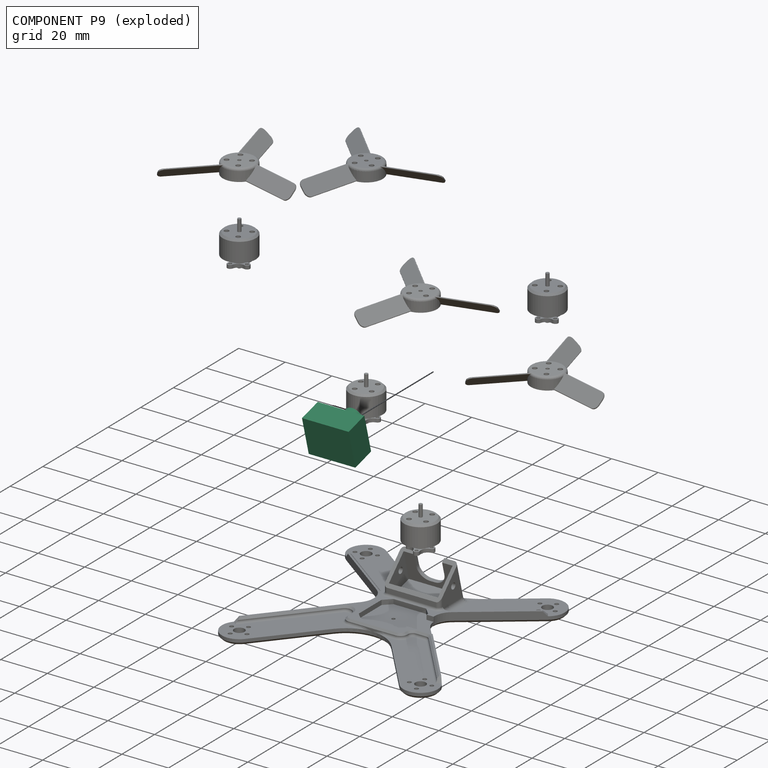
[diagram: component P9 — exploded]
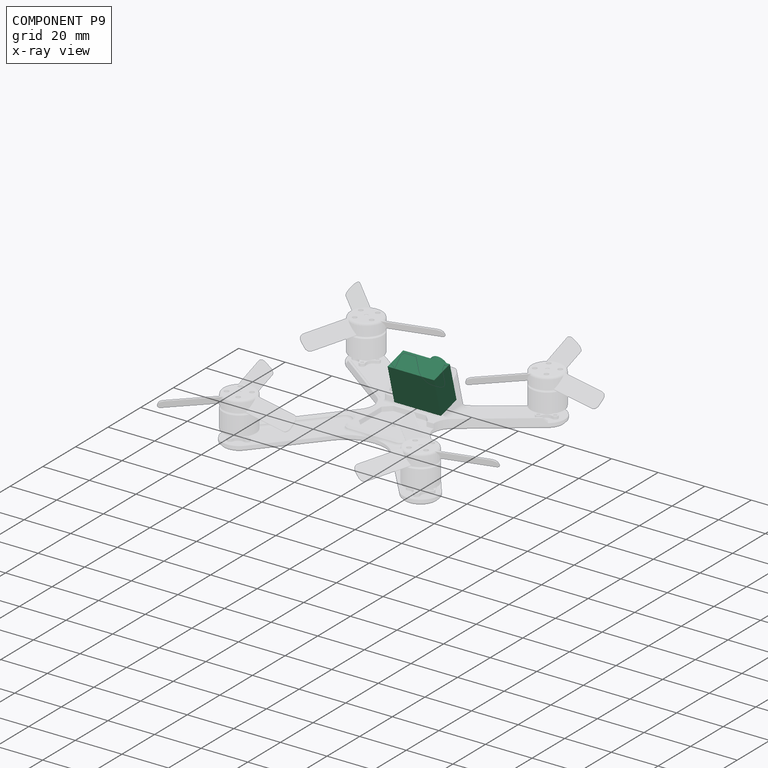
[diagram: component P9 — x-ray view]
COMPONENT P9 — recipe-attached (CADFS 00766727, mesh-verified: the recipe's output STEP matches this component's geometry to below the mesh-comparison resolution (tessellation chordal tolerance ~0.0453 mm)).
Held by: PLANAR mate "Planar 11" to P3; PLANAR mate "Planar 9" to P3; PLANAR mate "Planar 10" to P3.
Construction recipe (FeatureScript — the CAD program that rebuilds this solid; sketch coordinates are in the units given by the * unit suffixes, e.g. mm):

FeatureScript 1511;
import(path : "onshape/std/geometry.fs", version : "1511.0");
import(path : "onshape/std/common.fs", version : "1511.0");
const mm = millimeter;
const VERTEX = EntityType.VERTEX;
const EDGE = EntityType.EDGE;
const FACE = EntityType.FACE;
const BODY = EntityType.BODY;
function v(x, y){return vector(x, y);}
function OD(order){return orderDisambiguation(order);}
function OSD(set){return originalSetDisambiguation(set);}
function TD(topology){return topologyDisambiguation(topology);}
function TDD(query){return trueDependencyDisambiguation(query);}
function sQuery(a, b, c) {return sketchEntityQuery(a, b, c);}

annotation { "Feature Type Name" : "Feature", "Feature Type Description" : "" }
export const myFeature = defineFeature(function(context is Context, id is Id, definition is map)
    precondition{}
    {
        {
            var Q0;
            Q0=qCreatedBy(makeId("Top.planeOp"),FACE);
            var sketch = newSketch(context, id + "F0", { "sketchPlane" : qUnion([Q0])});
            skLineSegment(sketch, "E0.bottom", {"start": v(5, 10) * mm, "end": v(-5, 10) * mm});
            skLineSegment(sketch, "E0.top", {"start": v(5, -10) * mm, "end": v(-5, -10) * mm});
            skLineSegment(sketch, "E0.left", {"start": v(5, 10) * mm, "end": v(5, -10) * mm});
            skLineSegment(sketch, "E0.right", {"start": v(-5, 10) * mm, "end": v(-5, -10) * mm});
            skPoint(sketch, "E0.middle", {"position": v(0, 0) * mm});
            skSolve(sketch);
        }
        {
            var Q0;
            Q0 = qSketchRegion(id + "F0", true);
            extrude(context, id + "F1", {"entities" : qUnion([Q0]), "depth" : 16 * mm, "offsetDistance" : 25 * mm});
        }
        {
            var Q0;
            Q0=makeQuery(id+"F1.opExtrude","SWEPT_FACE",FACE,{"disambiguationData":[OSD([sQuery(id+"F0.wireOp",EDGE,"E0.right")])]});
            var sketch = newSketch(context, id + "F2", { "sketchPlane" : qUnion([Q0])});
            skCircle(sketch, "E1", {"center": v(0, 8) * mm, "radius": 4 * mm});
            skSolve(sketch);
        }
        {
            var Q0;
            Q0 = qSketchRegion(id + "F2", true);
            extrude(context, id + "F3", {"entities" : qUnion([Q0]), "operationType" : NewBodyOperationType.ADD, "depth" : 6 * mm, "offsetDistance" : 25 * mm});
        }
    });
PROVENANCE & LICENSES
Assembly (occurrences, transforms, mates, per-part STEP geometry): AutoMate dataset, Zenodo record 7776208, CC0.
Construction recipes: CADFS (HuggingFace VladPyatov/CADFS, CC-BY-4.0, layered over the ABC dataset), FeatureScript reconstruction programs keyed by ABC model id.
Join: ABC meta listings map ABC model id -> Onshape documentId; within a shared document, parts are matched by geometric signature (bounding-box dims + volume at 0.1% relative tolerance, exact B-rep face/solid counts).
Verification: 5 of this assembly's 10 components carry a recipe attachment, and every attachment is mesh-verified: the CADFS STEP and the AutoMate member STEP were compared as meshes in their shared local frame (symmetric sampled-point-to-mesh distance); worst across the 5 attachments: below the mesh-comparison resolution (tessellation chordal tolerance ~0.0453 mm) on a 30 mm part.
Renders: orthographic iso camera (az 35 / el 25); the floor grid conveys scale (grid pitch printed in each image; no ruler). In the exploded view each component is displaced by its stored offset vector: the offsets alone carry the explosion direction (mate normal/axis signs are not orientation cues and do not encode it), and separation distances are assigned per mate-chain, not proportionally to assembly-order depth.
